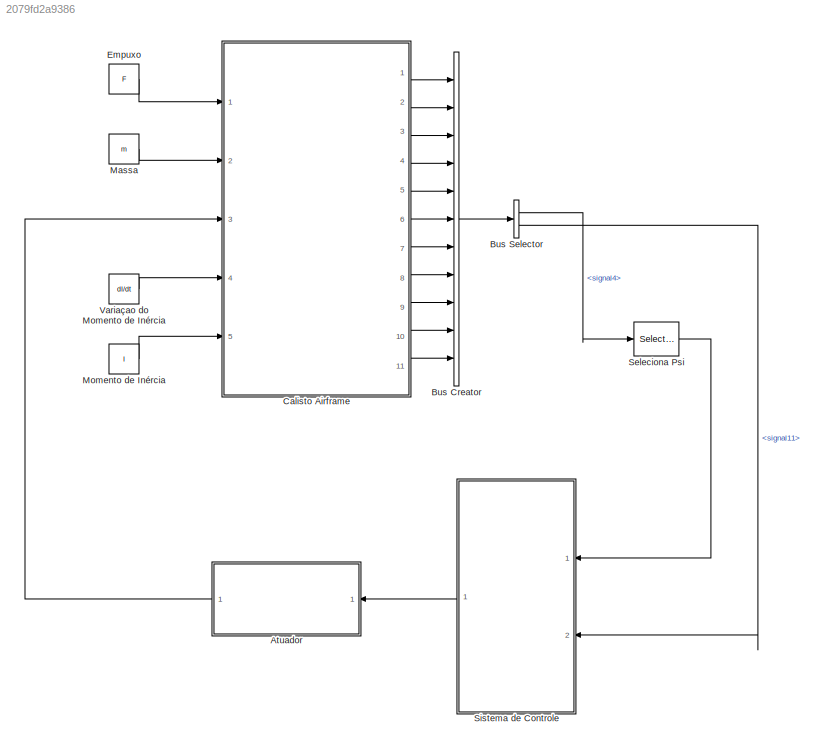
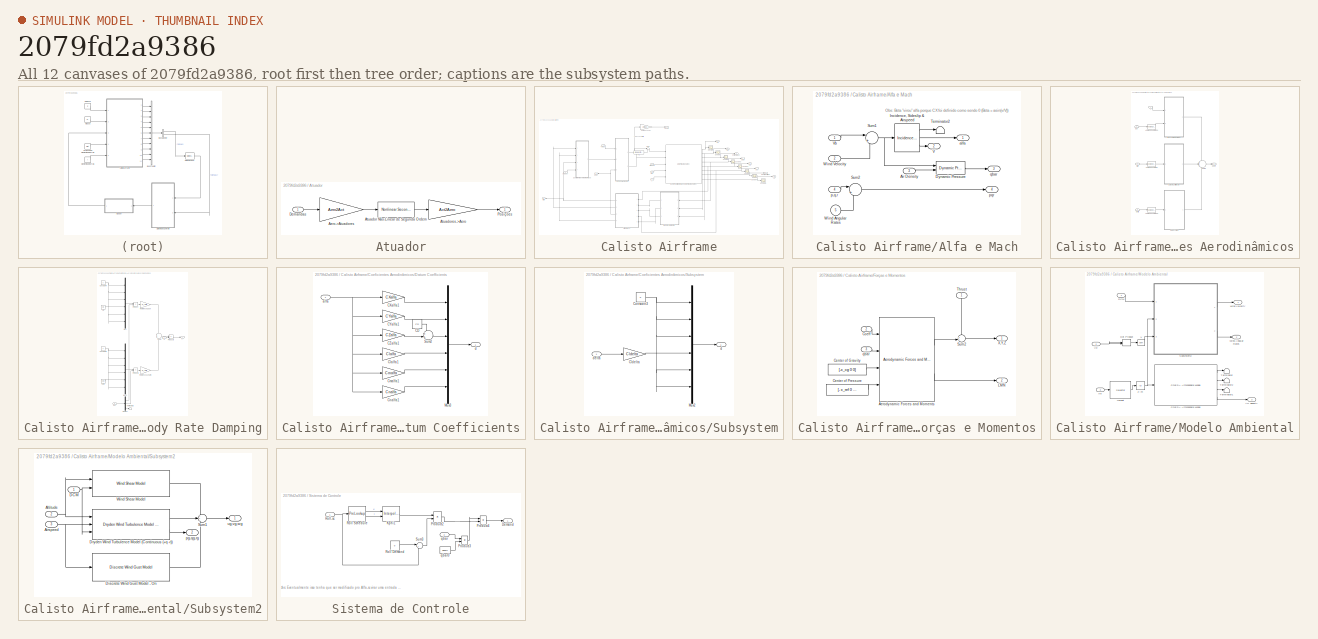
[diagram: thumbnail index - all 12 canvases of the model, root first then tree order]
MODEL slx_2079fd2a9386
KIND model
CONFIG AbsTol = auto
CONFIG FixedStep = auto
CONFIG MaxStep = auto
CONFIG MinStep = auto
CONFIG RelTol = 1e-3
CONFIG SampleTimeConstraint = Unconstrained
CONFIG Solver = ode45
CONFIG SolverMode = Auto
CONFIG SolverName = ode45
CONFIG StartTime = 0.0
CONFIG StopTime = 10.0
BLOCK [SubSystem] Atuador
  Ports = [1, 1]
  RequestExecContextInheritance = off
BLOCK [Gain] Atuador/Aero->Atuadores
  Gain = Aero2Act
  Multiplication = Matrix(K*u)
BLOCK [Reference] Atuador/Atuador Não-Linear de Segunda Ordem  REF=aerolibactuator/Nonlinear Second-Order Actuator
  Ports = [1, 1]
  SourceBlock = aerolibactuator/Nonlinear Second-Order Actuator
  SourceType = NonlinearSecondOrderActuator
  fin_act_0 = 0
  fin_act_vel = 0
  fin_max = max_lim
  fin_maxrate = inf
  fin_min = min_lim
  wn_fin = wn_act
  z_fin = z_act
BLOCK [Gain] Atuador/Atuadores->Aero
  Gain = Act2Aero
  Multiplication = Matrix(K*u)
BLOCK [Inport] Atuador/Demandas
  IconDisplay = Port number
BLOCK [Outport] Atuador/Posições
  IconDisplay = Port number
BLOCK [BusCreator] Bus Creator
  DisplayOption = bar
  Inputs = 11
  Ports = [11, 1]
BLOCK [BusSelector] Bus Selector
  OutputSignals = signal4,signal11
  Ports = [1, 2]
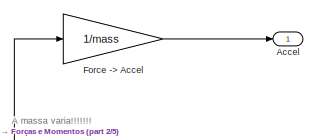
[diagram: Calisto Airframe - part 1/5, top center region]
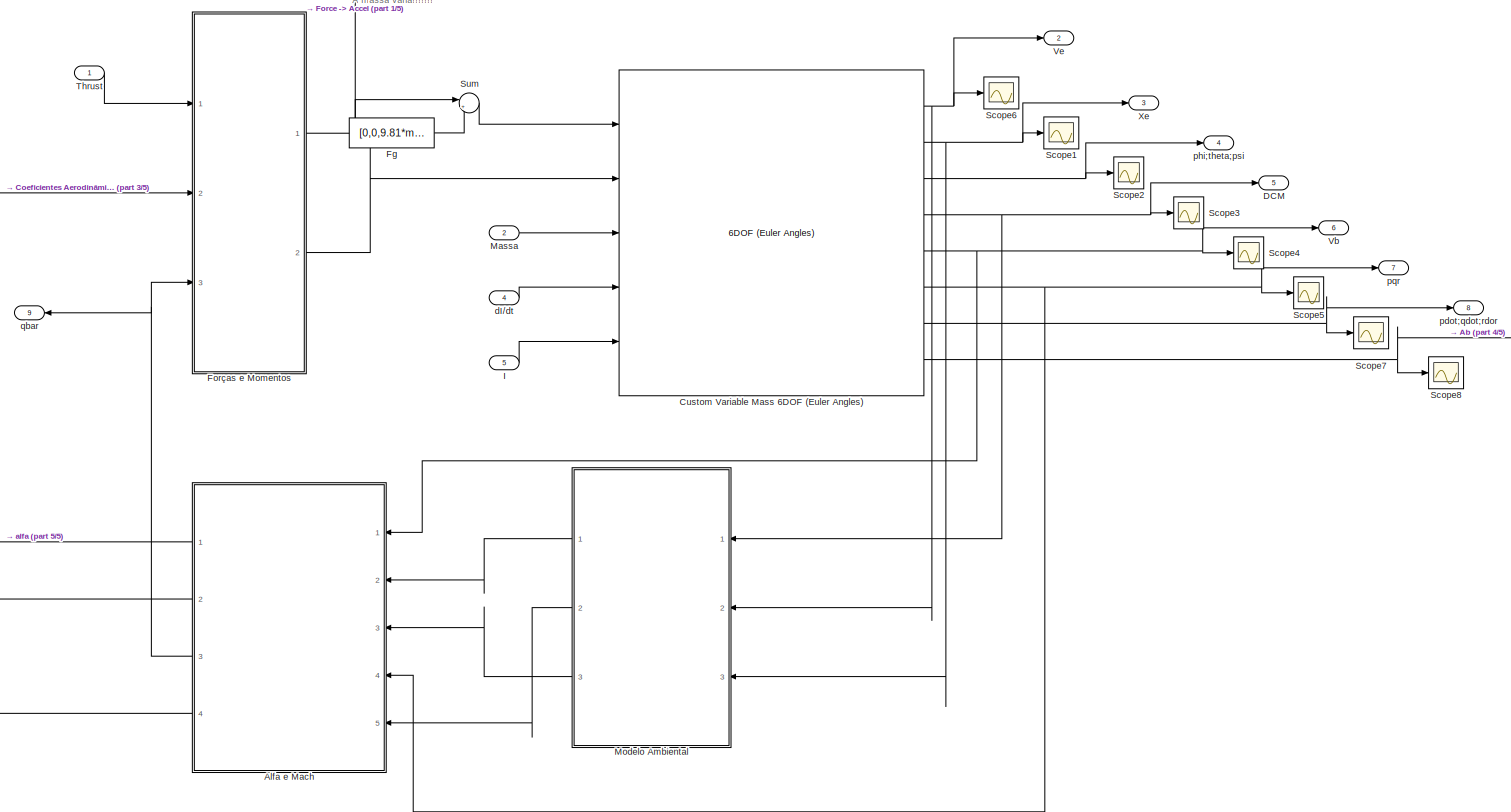
[diagram: Calisto Airframe - part 2/5, most of the canvas]
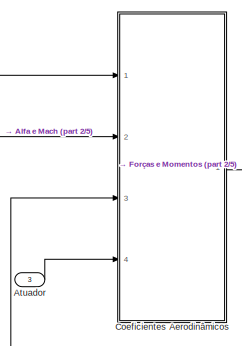
[diagram: Calisto Airframe - part 3/5, middle left region]
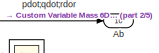
[diagram: Calisto Airframe - part 4/5, middle right region]
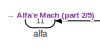
[diagram: Calisto Airframe - part 5/5, bottom left region]
BLOCK [SubSystem] Calisto Airframe
  Ports = [5, 11]
  RequestExecContextInheritance = off
BLOCK [Outport] Calisto Airframe/Ab
  IconDisplay = Port number
  Port = 10
BLOCK [Outport] Calisto Airframe/Accel
  IconDisplay = Port number
BLOCK [SubSystem] Calisto Airframe/Alfa e Mach
  Ports = [5, 4]
  RequestExecContextInheritance = off
BLOCK [Inport] Calisto Airframe/Alfa e Mach/Air Density
  IconDisplay = Port number
  Port = 3
BLOCK [Reference] Calisto Airframe/Alfa e Mach/Dynamic Pressure  REF=aerolibasang/Dynamic Pressure
  Ports = [2, 1]
  SourceBlock = aerolibasang/Dynamic Pressure
  SourceType = Dynamic Pressure
BLOCK [Reference] Calisto Airframe/Alfa e Mach/Incidence, Sideslip & Airspeed  REF=aerolibasang/Incidence, Sideslip,
& Airspeed
  Ports = [1, 3]
  SourceBlock = aerolibasang/Incidence, Sideslip,\n& Airspeed
  SourceType = Incidence,Sideslip,&Airspeed
BLOCK [Sum] Calisto Airframe/Alfa e Mach/Sum1
  IconShape = round
  Inputs = |+-
  Ports = [2, 1]
BLOCK [Sum] Calisto Airframe/Alfa e Mach/Sum2
  IconShape = round
  Inputs = |++
  Ports = [2, 1]
BLOCK [Terminator] Calisto Airframe/Alfa e Mach/Terminator2
BLOCK [Outport] Calisto Airframe/Alfa e Mach/V
  IconDisplay = Port number
  Port = 2
BLOCK [Inport] Calisto Airframe/Alfa e Mach/Vb
  IconDisplay = Port number
BLOCK [Inport] Calisto Airframe/Alfa e Mach/Wind Angular Rates
  IconDisplay = Port number
  Port = 5
BLOCK [Inport] Calisto Airframe/Alfa e Mach/Wind Velocity
  IconDisplay = Port number
  Port = 2
BLOCK [Outport] Calisto Airframe/Alfa e Mach/alfa
  IconDisplay = Port number
BLOCK [Inport] Calisto Airframe/Alfa e Mach/p,q,r
  IconDisplay = Port number
  Port = 4
BLOCK [Outport] Calisto Airframe/Alfa e Mach/pqr
  IconDisplay = Port number
  Port = 4
BLOCK [Outport] Calisto Airframe/Alfa e Mach/qbar
  IconDisplay = Port number
  Port = 3
BLOCK [Inport] Calisto Airframe/Atuador
  IconDisplay = Port number
  Port = 3
BLOCK [SubSystem] Calisto Airframe/Coeficientes Aerodinâmicos
  Ports = [4, 1]
  RequestExecContextInheritance = off
BLOCK [Reference] Calisto Airframe/Coeficientes Aerodinâmicos/Angle Conversion  REF=aerolibconvert2/Angle Conversion
  IU = rad
  OU = deg
  Ports = [1, 1]
  SourceBlock = aerolibconvert2/Angle Conversion
  SourceType = Angle Conversion
BLOCK [Reference] Calisto Airframe/Coeficientes Aerodinâmicos/Angle Conversion1  REF=aerolibconvert2/Angle Conversion
  IU = rad
  OU = deg
  Ports = [1, 1]
  SourceBlock = aerolibconvert2/Angle Conversion
  SourceType = Angle Conversion
BLOCK [Reference] Calisto Airframe/Coeficientes Aerodinâmicos/Angle Conversion2  REF=aerolibconvert2/Angle Conversion
  IU = rad
  OU = deg
  Ports = [1, 1]
  SourceBlock = aerolibconvert2/Angle Conversion
  SourceType = Angle Conversion
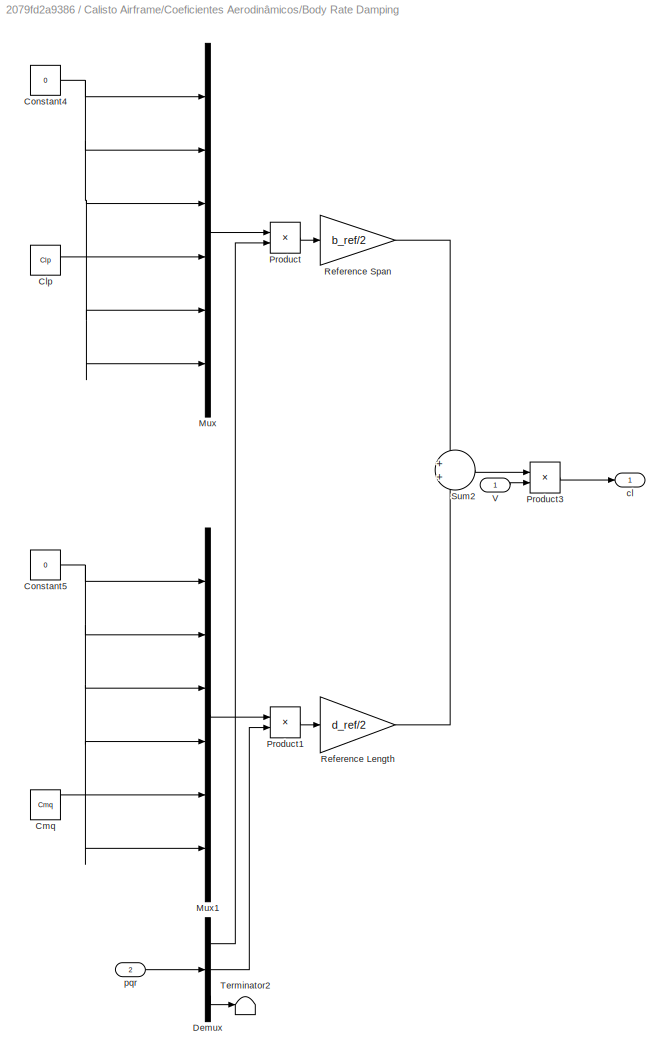
BLOCK [SubSystem] Calisto Airframe/Coeficientes Aerodinâmicos/Body Rate Damping
  Ports = [2, 1]
  RequestExecContextInheritance = off
BLOCK [Constant] Calisto Airframe/Coeficientes Aerodinâmicos/Body Rate Damping/Clp
  Value = Clp
BLOCK [Constant] Calisto Airframe/Coeficientes Aerodinâmicos/Body Rate Damping/Cmq
  Value = Cmq
BLOCK [Constant] Calisto Airframe/Coeficientes Aerodinâmicos/Body Rate Damping/Constant4
  Value = 0
BLOCK [Constant] Calisto Airframe/Coeficientes Aerodinâmicos/Body Rate Damping/Constant5
  Value = 0
BLOCK [Demux] Calisto Airframe/Coeficientes Aerodinâmicos/Body Rate Damping/Demux
  DisplayOption = bar
  Outputs = 3
  Ports = [1, 3]
BLOCK [Mux] Calisto Airframe/Coeficientes Aerodinâmicos/Body Rate Damping/Mux
  DisplayOption = bar
  Inputs = 6
  Ports = [6, 1]
BLOCK [Mux] Calisto Airframe/Coeficientes Aerodinâmicos/Body Rate Damping/Mux1
  DisplayOption = bar
  Inputs = 6
  Ports = [6, 1]
BLOCK [Product] Calisto Airframe/Coeficientes Aerodinâmicos/Body Rate Damping/Product
  Ports = [2, 1]
  RndMeth = Floor
BLOCK [Product] Calisto Airframe/Coeficientes Aerodinâmicos/Body Rate Damping/Product1
  Ports = [2, 1]
  RndMeth = Floor
BLOCK [Product] Calisto Airframe/Coeficientes Aerodinâmicos/Body Rate Damping/Product3
  Inputs = */
  Ports = [2, 1]
  RndMeth = Floor
BLOCK [Gain] Calisto Airframe/Coeficientes Aerodinâmicos/Body Rate Damping/Reference Length
  Gain = d_ref/2
BLOCK [Gain] Calisto Airframe/Coeficientes Aerodinâmicos/Body Rate Damping/Reference Span
  Gain = b_ref/2
BLOCK [Sum] Calisto Airframe/Coeficientes Aerodinâmicos/Body Rate Damping/Sum2
  IconShape = round
  Ports = [2, 1]
BLOCK [Terminator] Calisto Airframe/Coeficientes Aerodinâmicos/Body Rate Damping/Terminator2
BLOCK [Inport] Calisto Airframe/Coeficientes Aerodinâmicos/Body Rate Damping/V
  IconDisplay = Port number
BLOCK [Outport] Calisto Airframe/Coeficientes Aerodinâmicos/Body Rate Damping/cl
  IconDisplay = Port number
BLOCK [Inport] Calisto Airframe/Coeficientes Aerodinâmicos/Body Rate Damping/pqr
  IconDisplay = Port number
  Port = 2
BLOCK [Outport] Calisto Airframe/Coeficientes Aerodinâmicos/Coeff
  IconDisplay = Port number
BLOCK [SubSystem] Calisto Airframe/Coeficientes Aerodinâmicos/Datum Coefficients
  Ports = [1, 1]
  RequestExecContextInheritance = off
BLOCK [Constant] Calisto Airframe/Coeficientes Aerodinâmicos/Datum Coefficients/CD
  Value = CD
BLOCK [Gain] Calisto Airframe/Coeficientes Aerodinâmicos/Datum Coefficients/CXalfa1
  Gain = CXalfa
  OutDataTypeStr = Inherit: Inherit via internal rule
  ParamDataTypeStr = Inherit: Inherit via internal rule
  SaturateOnIntegerOverflow = off
BLOCK [Gain] Calisto Airframe/Coeficientes Aerodinâmicos/Datum Coefficients/CYalfa1
  Gain = CYalfa
  OutDataTypeStr = Inherit: Inherit via internal rule
  ParamDataTypeStr = Inherit: Inherit via internal rule
  SaturateOnIntegerOverflow = off
BLOCK [Gain] Calisto Airframe/Coeficientes Aerodinâmicos/Datum Coefficients/CZalfa1
  Gain = CZalfa
  OutDataTypeStr = Inherit: Inherit via internal rule
  ParamDataTypeStr = Inherit: Inherit via internal rule
  SaturateOnIntegerOverflow = off
BLOCK [Gain] Calisto Airframe/Coeficientes Aerodinâmicos/Datum Coefficients/Clalfa1
  Gain = Clalfa
  OutDataTypeStr = Inherit: Inherit via internal rule
  ParamDataTypeStr = Inherit: Inherit via internal rule
  SaturateOnIntegerOverflow = off
BLOCK [Gain] Calisto Airframe/Coeficientes Aerodinâmicos/Datum Coefficients/Cmalfa1
  Gain = Cmalfa
  OutDataTypeStr = Inherit: Inherit via internal rule
  ParamDataTypeStr = Inherit: Inherit via internal rule
  SaturateOnIntegerOverflow = off
BLOCK [Gain] Calisto Airframe/Coeficientes Aerodinâmicos/Datum Coefficients/Cnalfa1
  Gain = Cnalfa
  OutDataTypeStr = Inherit: Inherit via internal rule
  ParamDataTypeStr = Inherit: Inherit via internal rule
  SaturateOnIntegerOverflow = off
BLOCK [Mux] Calisto Airframe/Coeficientes Aerodinâmicos/Datum Coefficients/Mux3
  DisplayOption = bar
  Inputs = 6
  Ports = [6, 1]
BLOCK [Sum] Calisto Airframe/Coeficientes Aerodinâmicos/Datum Coefficients/Sum2
  IconShape = round
  Inputs = ++|
  Ports = [2, 1]
BLOCK [Inport] Calisto Airframe/Coeficientes Aerodinâmicos/Datum Coefficients/alfa
  IconDisplay = Port number
BLOCK [Outport] Calisto Airframe/Coeficientes Aerodinâmicos/Datum Coefficients/cl
  IconDisplay = Port number
BLOCK [SubSystem] Calisto Airframe/Coeficientes Aerodinâmicos/Subsystem
  Ports = [1, 1]
  RequestExecContextInheritance = off
BLOCK [Gain] Calisto Airframe/Coeficientes Aerodinâmicos/Subsystem/Cldelta
  Gain = Cldelta
  OutDataTypeStr = Inherit: Inherit via internal rule
  ParamDataTypeStr = Inherit: Inherit via internal rule
  SaturateOnIntegerOverflow = off
BLOCK [Constant] Calisto Airframe/Coeficientes Aerodinâmicos/Subsystem/Constant3
  Value = 0
BLOCK [Mux] Calisto Airframe/Coeficientes Aerodinâmicos/Subsystem/Mux2
  DisplayOption = bar
  Inputs = 6
  Ports = [6, 1]
BLOCK [Outport] Calisto Airframe/Coeficientes Aerodinâmicos/Subsystem/cl
  IconDisplay = Port number
BLOCK [Inport] Calisto Airframe/Coeficientes Aerodinâmicos/Subsystem/delta
  IconDisplay = Port number
BLOCK [Sum] Calisto Airframe/Coeficientes Aerodinâmicos/Sum1
  IconShape = round
  Inputs = +++
  Ports = [3, 1]
BLOCK [Inport] Calisto Airframe/Coeficientes Aerodinâmicos/V
  IconDisplay = Port number
BLOCK [Inport] Calisto Airframe/Coeficientes Aerodinâmicos/alfa
  IconDisplay = Port number
  Port = 3
BLOCK [Inport] Calisto Airframe/Coeficientes Aerodinâmicos/delta
  IconDisplay = Port number
  Port = 4
BLOCK [Inport] Calisto Airframe/Coeficientes Aerodinâmicos/pqr
  IconDisplay = Port number
  Port = 2
BLOCK [Reference] Calisto Airframe/Custom Variable Mass 6DOF (Euler Angles)  REF=aerolib6dof2/6DOF (Euler Angles)
  Ports = [5, 8]
  SourceBlock = aerolib6dof2/6DOF (Euler Angles)
  SourceType = 6DOF EoM (Body Axis)
  Vm_0 = [0 0 0]
  eul_0 = [0 0 0]
  inertia = eye(3)
  inertia_e = eye(3)
  inertia_f = 2*eye(3)
  k_quat = 1.0
  mass_0 = 1.0
  mass_e = 0.5
  mass_f = 2.0
  mtype = Custom Variable
  pm_0 = [0 0 0]
  rep = Euler Angles
  units = Metric (MKS)
  vre_flag = off
  xme_0 = [0 0 0]
BLOCK [Outport] Calisto Airframe/DCM
  IconDisplay = Port number
  Port = 5
BLOCK [Constant] Calisto Airframe/Fg
  Value = [0,0,9.81*mass]
BLOCK [Gain] Calisto Airframe/Force -> Accel
  Gain = 1/mass
  OutDataTypeStr = Inherit: Inherit via internal rule
  ParamDataTypeStr = Inherit: Inherit via internal rule
  SaturateOnIntegerOverflow = off
BLOCK [SubSystem] Calisto Airframe/Forças e Momentos
  Ports = [3, 2]
  RequestExecContextInheritance = off
BLOCK [Reference] Calisto Airframe/Forças e Momentos/Aerodynamic Forces and Moments  REF=aerolibadyn/Aerodynamic
Forces and Moments 
  Ports = [4, 2]
  S = 1
  SourceBlock = aerolibadyn/Aerodynamic\nForces and Moments
  SourceType = Aerodynamic Forces and Moments
  b = 1
  cbar = 1
  inputAxes = Body
  outputForceAxes = Body
  outputMomentAxes = Body
BLOCK [Constant] Calisto Airframe/Forças e Momentos/Center of Gravity
  Value = [-x_cg 0 0]
BLOCK [Constant] Calisto Airframe/Forças e Momentos/Center of Pressure
  Value = [- x_ref 0 0]
BLOCK [Inport] Calisto Airframe/Forças e Momentos/Coeff
  IconDisplay = Port number
  Port = 2
BLOCK [Outport] Calisto Airframe/Forças e Momentos/LMN
  IconDisplay = Port number
  Port = 2
BLOCK [Sum] Calisto Airframe/Forças e Momentos/Sum2
  IconShape = round
  Inputs = ++|
  Ports = [2, 1]
BLOCK [Inport] Calisto Airframe/Forças e Momentos/Thrust
  IconDisplay = Port number
BLOCK [Outport] Calisto Airframe/Forças e Momentos/X,Y,Z
  IconDisplay = Port number
BLOCK [Inport] Calisto Airframe/Forças e Momentos/qbar
  IconDisplay = Port number
  Port = 3
BLOCK [Inport] Calisto Airframe/I
  IconDisplay = Port number
  Port = 5
BLOCK [Inport] Calisto Airframe/Massa
  IconDisplay = Port number
  Port = 2
BLOCK [SubSystem] Calisto Airframe/Modelo Ambiental
  Ports = [3, 3]
  RequestExecContextInheritance = off
BLOCK [Outport] Calisto Airframe/Modelo Ambiental/Air density
  IconDisplay = Port number
  Port = 3
BLOCK [Reference] Calisto Airframe/Modelo Ambiental/COESA Atmosphere Model  REF=aerolibatmos2/COESA Atmosphere Model
  Ports = [1, 4]
  SourceBlock = aerolibatmos2/COESA Atmosphere Model
  SourceType = Atmosphere Model
  action = None
  envelope_percent = 1%
  envelope_var = High temperature
  model = Profile
  profile_alt = 5 km (16404 ft)
  profile_percent = 10%
  profile_var = High temperature
  spec = 1976 COESA-extended U.S. Standard Atmosphere
  units = Metric (MKS)
BLOCK [Inport] Calisto Airframe/Modelo Ambiental/DCM
  IconDisplay = Port number
BLOCK [DotProduct] Calisto Airframe/Modelo Ambiental/Dot Product
  InputSameDT = off
  OutDataTypeStr = Inherit: Inherit via internal rule
  SaturateOnIntegerOverflow = on
BLOCK [Selector] Calisto Airframe/Modelo Ambiental/Height
  Indices = [3]
  InputPortWidth = 3
  Ports = [1, 1]
BLOCK [SubSystem] Calisto Airframe/Modelo Ambiental/Subsystem2
  Ports = [3, 2]
  RequestExecContextInheritance = off
BLOCK [Inport] Calisto Airframe/Modelo Ambiental/Subsystem2/Airspeed
  IconDisplay = Port number
  Port = 3
BLOCK [Inport] Calisto Airframe/Modelo Ambiental/Subsystem2/Altitude
  IconDisplay = Port number
  Port = 2
BLOCK [Inport] Calisto Airframe/Modelo Ambiental/Subsystem2/DCM
  IconDisplay = Port number
BLOCK [Reference] Calisto Airframe/Modelo Ambiental/Subsystem2/Discrete Wind Gust Model - On  REF=aerolibwind2/Discrete Wind Gust Model
  Gx = on
  Gy = on
  Gz = on
  Ports = [1, 1]
  SourceBlock = aerolibwind2/Discrete Wind Gust Model
  SourceType = Discrete Wind Gust Model
  d_m = [120 120 80]
  t_0 = 20
  units = Metric (MKS)
  v_m = [3.5 3.0 3.0]
BLOCK [Reference] Calisto Airframe/Modelo Ambiental/Subsystem2/Dryden Wind Turbulence Model (Continuous (+q -r))  REF=aerolibwind2/Dryden Wind Turbulence Model 
(Continuous (+q -r))
  L_high = 533.4
  Ports = [3, 2]
  Seed = [23341 23342 23343 23344]
  SourceBlock = aerolibwind2/Dryden Wind Turbulence Model \n(Continuous (+q -r))
  SourceType = Wind Turbulence Model
  T_on = on
  TurbProb = 10^-2 - Light
  W20 = 5
  Wdeg = 0
  Wingspan = 4
  model = Continuous Dryden (+q -r)
  spec = MIL-F-8785C
  ts = 0.1
  units = Metric (MKS)
BLOCK [Sum] Calisto Airframe/Modelo Ambiental/Subsystem2/Sum1
  IconShape = round
  Inputs = +++
  Ports = [3, 1]
BLOCK [Reference] Calisto Airframe/Modelo Ambiental/Subsystem2/Wind Shear Model  REF=aerolibwind2/Wind Shear Model
  Ports = [2, 1]
  SourceBlock = aerolibwind2/Wind Shear Model
  SourceType = Wind Shear Model
  W_20 = 1
  Wdeg = 0
  phase = Category C - Terminal Flight Phase
  units = Metric (MKS)
BLOCK [Outport] Calisto Airframe/Modelo Ambiental/Subsystem2/pg,qg,rg
  IconDisplay = Port number
  Port = 2
BLOCK [Outport] Calisto Airframe/Modelo Ambiental/Subsystem2/ug,vg,wg
  IconDisplay = Port number
BLOCK [Terminator] Calisto Airframe/Modelo Ambiental/Terminator
BLOCK [Terminator] Calisto Airframe/Modelo Ambiental/Terminator1
BLOCK [Terminator] Calisto Airframe/Modelo Ambiental/Terminator2
BLOCK [Math] Calisto Airframe/Modelo Ambiental/V
  Operator = sqrt
  Ports = [1, 1]
BLOCK [Inport] Calisto Airframe/Modelo Ambiental/Ve
  IconDisplay = Port number
  Port = 2
BLOCK [Outport] Calisto Airframe/Modelo Ambiental/Wind Angular Rates
  IconDisplay = Port number
  Port = 2
BLOCK [Outport] Calisto Airframe/Modelo Ambiental/Wind Velocity
  IconDisplay = Port number
BLOCK [Inport] Calisto Airframe/Modelo Ambiental/Xe
  IconDisplay = Port number
  Port = 3
BLOCK [Abs] Calisto Airframe/Modelo Ambiental/z-->h
BLOCK [Scope] Calisto Airframe/Scope1
  Floating = off
  NumInputPorts = 1
  Ports = [1]
  SaveName = ScopeData1
BLOCK [Scope] Calisto Airframe/Scope2
  Floating = off
  NumInputPorts = 1
  Ports = [1]
  SaveName = ScopeData2
BLOCK [Scope] Calisto Airframe/Scope3
  Floating = off
  NumInputPorts = 1
  Ports = [1]
  SaveName = ScopeData3
BLOCK [Scope] Calisto Airframe/Scope4
  Floating = off
  NumInputPorts = 1
  Ports = [1]
  SaveName = ScopeData4
BLOCK [Scope] Calisto Airframe/Scope5
  Floating = off
  NumInputPorts = 1
  Ports = [1]
  SaveName = ScopeData5
BLOCK [Scope] Calisto Airframe/Scope6
  Floating = off
  NumInputPorts = 1
  Ports = [1]
BLOCK [Scope] Calisto Airframe/Scope7
  Floating = off
  NumInputPorts = 1
  Ports = [1]
  SaveName = ScopeData6
BLOCK [Scope] Calisto Airframe/Scope8
  Floating = off
  NumInputPorts = 1
  Ports = [1]
  SaveName = ScopeData7
BLOCK [Sum] Calisto Airframe/Sum
  IconShape = round
  Inputs = |++
  Ports = [2, 1]
BLOCK [Inport] Calisto Airframe/Thrust
  IconDisplay = Port number
BLOCK [Outport] Calisto Airframe/Vb
  IconDisplay = Port number
  Port = 6
BLOCK [Outport] Calisto Airframe/Ve
  IconDisplay = Port number
  Port = 2
BLOCK [Outport] Calisto Airframe/Xe
  IconDisplay = Port number
  Port = 3
BLOCK [Outport] Calisto Airframe/alfa
  IconDisplay = Port number
  Port = 11
BLOCK [Inport] Calisto Airframe/dI//dt
  IconDisplay = Port number
  Port = 4
BLOCK [Outport] Calisto Airframe/pdot;qdot;rdor
  IconDisplay = Port number
  Port = 8
BLOCK [Outport] Calisto Airframe/phi;theta;psi
  IconDisplay = Port number
  Port = 4
BLOCK [Outport] Calisto Airframe/pqr
  IconDisplay = Port number
  Port = 7
BLOCK [Outport] Calisto Airframe/qbar
  IconDisplay = Port number
  Port = 9
BLOCK [Constant] Empuxo
  Value = F
BLOCK [Constant] Massa
  Value = m
BLOCK [Constant] Momento de Inércia
  Value = I
BLOCK [Selector] Seleciona Psi
  IndexMode = Zero-based
  Indices = 2
  InputPortWidth = 3
  Ports = [1, 1]
BLOCK [SubSystem] Sistema de Controle
  Ports = [2, 1]
  RequestExecContextInheritance = off
BLOCK [Outport] Sistema de Controle/Demand
  IconDisplay = Port number
BLOCK [Interpolation_n-D] Sistema de Controle/Kphi1
  InputPortMap = u0,u1
  NumberOfTableDimensions = 1
  Ports = [2, 1]
  RemoveProtectionIndex = on
  Table = Kphi_1
BLOCK [Product] Sistema de Controle/Product2
  Ports = [2, 1]
  RndMeth = Floor
BLOCK [Product] Sistema de Controle/Product3
  Inputs = */
  Ports = [2, 1]
  RndMeth = Floor
BLOCK [Product] Sistema de Controle/Product4
  Inputs = /*
  Ports = [2, 1]
  RndMeth = Floor
BLOCK [Constant] Sistema de Controle/Roll Demand
  Value = 0
BLOCK [PreLookup] Sistema de Controle/Roll Schedule
  BeginIndexSearchUsingPreviousIndexResult = on
  BreakpointsData = a_vec
  ExtrapMethod = Linear
  InputPortMap = u0
  Ports = [1, 2]
BLOCK [Inport] Sistema de Controle/Roll-sc
  IconDisplay = Port number
BLOCK [Sum] Sistema de Controle/Sum3
  IconShape = round
  Inputs = |+-
  Ports = [2, 1]
BLOCK [Inport] Sistema de Controle/qbar
  IconDisplay = Port number
  Port = 2
BLOCK [Constant] Sistema de Controle/qbar0
  Value = qbar0
BLOCK [Constant] Variaçao do Momento de Inércia
  Value = dI/dt
ANNOTATION Calisto Airframe: A massa varia!!!!!!!
ANNOTATION Calisto Airframe/Alfa e Mach: Obs: Beta "virou" alfa porque CX foi definido como sendo 0 (Beta = asin(v/V))
ANNOTATION Sistema de Controle: Obs: Eventualmente isso tenha que ser modificado pro Alfa-sc virar uma entrada além do Roll-sc
LINE Atuador/Aero->Atuadores:1 -> Atuador/Atuador Não-Linear de Segunda Ordem:1
LINE Atuador/Atuador Não-Linear de Segunda Ordem:1 -> Atuador/Atuadores->Aero:1
LINE Atuador/Atuadores->Aero:1 -> Atuador/Posições:1
LINE Atuador/Demandas:1 -> Atuador/Aero->Atuadores:1
LINE Atuador:1 -> Calisto Airframe:3
LINE Bus Creator:1 -> Bus Selector:1
LINE Bus Selector:1 -> Seleciona Psi:1
LINE Bus Selector:2 -> Sistema de Controle:2
LINE Calisto Airframe/Alfa e Mach/Air Density:1 -> Calisto Airframe/Alfa e Mach/Dynamic Pressure:2
LINE Calisto Airframe/Alfa e Mach/Dynamic Pressure:1 -> Calisto Airframe/Alfa e Mach/qbar:1
LINE Calisto Airframe/Alfa e Mach/Incidence, Sideslip & Airspeed:1 -> Calisto Airframe/Alfa e Mach/Terminator2:1
LINE Calisto Airframe/Alfa e Mach/Incidence, Sideslip & Airspeed:2 -> Calisto Airframe/Alfa e Mach/alfa:1
LINE Calisto Airframe/Alfa e Mach/Incidence, Sideslip & Airspeed:3 -> Calisto Airframe/Alfa e Mach/V:1
NET Calisto Airframe/Alfa e Mach/Sum1:1 -> Calisto Airframe/Alfa e Mach/Dynamic Pressure:1, Calisto Airframe/Alfa e Mach/Incidence, Sideslip & Airspeed:1
LINE Calisto Airframe/Alfa e Mach/Sum2:1 -> Calisto Airframe/Alfa e Mach/pqr:1
LINE Calisto Airframe/Alfa e Mach/Vb:1 -> Calisto Airframe/Alfa e Mach/Sum1:1
LINE Calisto Airframe/Alfa e Mach/Wind Angular Rates:1 -> Calisto Airframe/Alfa e Mach/Sum2:2
LINE Calisto Airframe/Alfa e Mach/Wind Velocity:1 -> Calisto Airframe/Alfa e Mach/Sum1:2
LINE Calisto Airframe/Alfa e Mach/p,q,r:1 -> Calisto Airframe/Alfa e Mach/Sum2:1
NET Calisto Airframe/Alfa e Mach:1 -> Calisto Airframe/Coeficientes Aerodinâmicos:3, Calisto Airframe/alfa:1
LINE Calisto Airframe/Alfa e Mach:2 -> Calisto Airframe/Coeficientes Aerodinâmicos:1
NET Calisto Airframe/Alfa e Mach:3 -> Calisto Airframe/Forças e Momentos:3, Calisto Airframe/qbar:1
LINE Calisto Airframe/Alfa e Mach:4 -> Calisto Airframe/Coeficientes Aerodinâmicos:2
LINE Calisto Airframe/Atuador:1 -> Calisto Airframe/Coeficientes Aerodinâmicos:4
LINE Calisto Airframe/Coeficientes Aerodinâmicos/Angle Conversion1:1 -> Calisto Airframe/Coeficientes Aerodinâmicos/Body Rate Damping:2
LINE Calisto Airframe/Coeficientes Aerodinâmicos/Angle Conversion2:1 -> Calisto Airframe/Coeficientes Aerodinâmicos/Subsystem:1
LINE Calisto Airframe/Coeficientes Aerodinâmicos/Angle Conversion:1 -> Calisto Airframe/Coeficientes Aerodinâmicos/Datum Coefficients:1
LINE Calisto Airframe/Coeficientes Aerodinâmicos/Body Rate Damping/Clp:1 -> Calisto Airframe/Coeficientes Aerodinâmicos/Body Rate Damping/Mux:4
LINE Calisto Airframe/Coeficientes Aerodinâmicos/Body Rate Damping/Cmq:1 -> Calisto Airframe/Coeficientes Aerodinâmicos/Body Rate Damping/Mux1:5
NET Calisto Airframe/Coeficientes Aerodinâmicos/Body Rate Damping/Constant4:1 -> Calisto Airframe/Coeficientes Aerodinâmicos/Body Rate Damping/Mux:1, Calisto Airframe/Coeficientes Aerodinâmicos/Body Rate Damping/Mux:2, Calisto Airframe/Coeficientes Aerodinâmicos/Body Rate Damping/Mux:3, Calisto Airframe/Coeficientes Aerodinâmicos/Body Rate Damping/Mux:5, Calisto Airframe/Coeficientes Aerodinâmicos/Body Rate Damping/Mux:6
NET Calisto Airframe/Coeficientes Aerodinâmicos/Body Rate Damping/Constant5:1 -> Calisto Airframe/Coeficientes Aerodinâmicos/Body Rate Damping/Mux1:1, Calisto Airframe/Coeficientes Aerodinâmicos/Body Rate Damping/Mux1:2, Calisto Airframe/Coeficientes Aerodinâmicos/Body Rate Damping/Mux1:3, Calisto Airframe/Coeficientes Aerodinâmicos/Body Rate Damping/Mux1:4, Calisto Airframe/Coeficientes Aerodinâmicos/Body Rate Damping/Mux1:6
LINE Calisto Airframe/Coeficientes Aerodinâmicos/Body Rate Damping/Demux:1 -> Calisto Airframe/Coeficientes Aerodinâmicos/Body Rate Damping/Product:2
LINE Calisto Airframe/Coeficientes Aerodinâmicos/Body Rate Damping/Demux:2 -> Calisto Airframe/Coeficientes Aerodinâmicos/Body Rate Damping/Product1:2
LINE Calisto Airframe/Coeficientes Aerodinâmicos/Body Rate Damping/Demux:3 -> Calisto Airframe/Coeficientes Aerodinâmicos/Body Rate Damping/Terminator2:1
LINE Calisto Airframe/Coeficientes Aerodinâmicos/Body Rate Damping/Mux1:1 -> Calisto Airframe/Coeficientes Aerodinâmicos/Body Rate Damping/Product1:1
LINE Calisto Airframe/Coeficientes Aerodinâmicos/Body Rate Damping/Mux:1 -> Calisto Airframe/Coeficientes Aerodinâmicos/Body Rate Damping/Product:1
LINE Calisto Airframe/Coeficientes Aerodinâmicos/Body Rate Damping/Product1:1 -> Calisto Airframe/Coeficientes Aerodinâmicos/Body Rate Damping/Reference Length:1
LINE Calisto Airframe/Coeficientes Aerodinâmicos/Body Rate Damping/Product3:1 -> Calisto Airframe/Coeficientes Aerodinâmicos/Body Rate Damping/cl:1
LINE Calisto Airframe/Coeficientes Aerodinâmicos/Body Rate Damping/Product:1 -> Calisto Airframe/Coeficientes Aerodinâmicos/Body Rate Damping/Reference Span:1
LINE Calisto Airframe/Coeficientes Aerodinâmicos/Body Rate Damping/Reference Length:1 -> Calisto Airframe/Coeficientes Aerodinâmicos/Body Rate Damping/Sum2:2
LINE Calisto Airframe/Coeficientes Aerodinâmicos/Body Rate Damping/Reference Span:1 -> Calisto Airframe/Coeficientes Aerodinâmicos/Body Rate Damping/Sum2:1
LINE Calisto Airframe/Coeficientes Aerodinâmicos/Body Rate Damping/Sum2:1 -> Calisto Airframe/Coeficientes Aerodinâmicos/Body Rate Damping/Product3:1
LINE Calisto Airframe/Coeficientes Aerodinâmicos/Body Rate Damping/V:1 -> Calisto Airframe/Coeficientes Aerodinâmicos/Body Rate Damping/Product3:2
LINE Calisto Airframe/Coeficientes Aerodinâmicos/Body Rate Damping/pqr:1 -> Calisto Airframe/Coeficientes Aerodinâmicos/Body Rate Damping/Demux:1
LINE Calisto Airframe/Coeficientes Aerodinâmicos/Body Rate Damping:1 -> Calisto Airframe/Coeficientes Aerodinâmicos/Sum1:1
LINE Calisto Airframe/Coeficientes Aerodinâmicos/Datum Coefficients/CD:1 -> Calisto Airframe/Coeficientes Aerodinâmicos/Datum Coefficients/Sum2:1
LINE Calisto Airframe/Coeficientes Aerodinâmicos/Datum Coefficients/CXalfa1:1 -> Calisto Airframe/Coeficientes Aerodinâmicos/Datum Coefficients/Mux3:1
LINE Calisto Airframe/Coeficientes Aerodinâmicos/Datum Coefficients/CYalfa1:1 -> Calisto Airframe/Coeficientes Aerodinâmicos/Datum Coefficients/Mux3:2
LINE Calisto Airframe/Coeficientes Aerodinâmicos/Datum Coefficients/CZalfa1:1 -> Calisto Airframe/Coeficientes Aerodinâmicos/Datum Coefficients/Sum2:2
LINE Calisto Airframe/Coeficientes Aerodinâmicos/Datum Coefficients/Clalfa1:1 -> Calisto Airframe/Coeficientes Aerodinâmicos/Datum Coefficients/Mux3:4
LINE Calisto Airframe/Coeficientes Aerodinâmicos/Datum Coefficients/Cmalfa1:1 -> Calisto Airframe/Coeficientes Aerodinâmicos/Datum Coefficients/Mux3:5
LINE Calisto Airframe/Coeficientes Aerodinâmicos/Datum Coefficients/Cnalfa1:1 -> Calisto Airframe/Coeficientes Aerodinâmicos/Datum Coefficients/Mux3:6
LINE Calisto Airframe/Coeficientes Aerodinâmicos/Datum Coefficients/Mux3:1 -> Calisto Airframe/Coeficientes Aerodinâmicos/Datum Coefficients/cl:1
LINE Calisto Airframe/Coeficientes Aerodinâmicos/Datum Coefficients/Sum2:1 -> Calisto Airframe/Coeficientes Aerodinâmicos/Datum Coefficients/Mux3:3
NET Calisto Airframe/Coeficientes Aerodinâmicos/Datum Coefficients/alfa:1 -> Calisto Airframe/Coeficientes Aerodinâmicos/Datum Coefficients/CXalfa1:1, Calisto Airframe/Coeficientes Aerodinâmicos/Datum Coefficients/CYalfa1:1, Calisto Airframe/Coeficientes Aerodinâmicos/Datum Coefficients/CZalfa1:1, Calisto Airframe/Coeficientes Aerodinâmicos/Datum Coefficients/Clalfa1:1, Calisto Airframe/Coeficientes Aerodinâmicos/Datum Coefficients/Cmalfa1:1, Calisto Airframe/Coeficientes Aerodinâmicos/Datum Coefficients/Cnalfa1:1
LINE Calisto Airframe/Coeficientes Aerodinâmicos/Datum Coefficients:1 -> Calisto Airframe/Coeficientes Aerodinâmicos/Sum1:2
LINE Calisto Airframe/Coeficientes Aerodinâmicos/Subsystem/Cldelta:1 -> Calisto Airframe/Coeficientes Aerodinâmicos/Subsystem/Mux2:4
NET Calisto Airframe/Coeficientes Aerodinâmicos/Subsystem/Constant3:1 -> Calisto Airframe/Coeficientes Aerodinâmicos/Subsystem/Mux2:1, Calisto Airframe/Coeficientes Aerodinâmicos/Subsystem/Mux2:2, Calisto Airframe/Coeficientes Aerodinâmicos/Subsystem/Mux2:3, Calisto Airframe/Coeficientes Aerodinâmicos/Subsystem/Mux2:5, Calisto Airframe/Coeficientes Aerodinâmicos/Subsystem/Mux2:6
LINE Calisto Airframe/Coeficientes Aerodinâmicos/Subsystem/Mux2:1 -> Calisto Airframe/Coeficientes Aerodinâmicos/Subsystem/cl:1
LINE Calisto Airframe/Coeficientes Aerodinâmicos/Subsystem/delta:1 -> Calisto Airframe/Coeficientes Aerodinâmicos/Subsystem/Cldelta:1
LINE Calisto Airframe/Coeficientes Aerodinâmicos/Subsystem:1 -> Calisto Airframe/Coeficientes Aerodinâmicos/Sum1:3
LINE Calisto Airframe/Coeficientes Aerodinâmicos/Sum1:1 -> Calisto Airframe/Coeficientes Aerodinâmicos/Coeff:1
LINE Calisto Airframe/Coeficientes Aerodinâmicos/V:1 -> Calisto Airframe/Coeficientes Aerodinâmicos/Body Rate Damping:1
LINE Calisto Airframe/Coeficientes Aerodinâmicos/alfa:1 -> Calisto Airframe/Coeficientes Aerodinâmicos/Angle Conversion:1
LINE Calisto Airframe/Coeficientes Aerodinâmicos/delta:1 -> Calisto Airframe/Coeficientes Aerodinâmicos/Angle Conversion2:1
LINE Calisto Airframe/Coeficientes Aerodinâmicos/pqr:1 -> Calisto Airframe/Coeficientes Aerodinâmicos/Angle Conversion1:1
LINE Calisto Airframe/Coeficientes Aerodinâmicos:1 -> Calisto Airframe/Forças e Momentos:2
NET Calisto Airframe/Custom Variable Mass 6DOF (Euler Angles):1 -> Calisto Airframe/Modelo Ambiental:2, Calisto Airframe/Scope6:1, Calisto Airframe/Ve:1
NET Calisto Airframe/Custom Variable Mass 6DOF (Euler Angles):2 -> Calisto Airframe/Modelo Ambiental:3, Calisto Airframe/Scope1:1, Calisto Airframe/Xe:1
NET Calisto Airframe/Custom Variable Mass 6DOF (Euler Angles):3 -> Calisto Airframe/Scope2:1, Calisto Airframe/phi;theta;psi:1
NET Calisto Airframe/Custom Variable Mass 6DOF (Euler Angles):4 -> Calisto Airframe/DCM:1, Calisto Airframe/Modelo Ambiental:1, Calisto Airframe/Scope3:1
NET Calisto Airframe/Custom Variable Mass 6DOF (Euler Angles):5 -> Calisto Airframe/Alfa e Mach:1, Calisto Airframe/Scope4:1, Calisto Airframe/Vb:1
NET Calisto Airframe/Custom Variable Mass 6DOF (Euler Angles):6 -> Calisto Airframe/Alfa e Mach:4, Calisto Airframe/Scope5:1, Calisto Airframe/pqr:1
NET Calisto Airframe/Custom Variable Mass 6DOF (Euler Angles):7 -> Calisto Airframe/Scope7:1, Calisto Airframe/pdot;qdot;rdor:1
NET Calisto Airframe/Custom Variable Mass 6DOF (Euler Angles):8 -> Calisto Airframe/Ab:1, Calisto Airframe/Scope8:1
LINE Calisto Airframe/Fg:1 -> Calisto Airframe/Sum:2
LINE Calisto Airframe/Force -> Accel:1 -> Calisto Airframe/Accel:1
LINE Calisto Airframe/Forças e Momentos/Aerodynamic Forces and Moments:1 -> Calisto Airframe/Forças e Momentos/Sum2:2
LINE Calisto Airframe/Forças e Momentos/Aerodynamic Forces and Moments:2 -> Calisto Airframe/Forças e Momentos/LMN:1
LINE Calisto Airframe/Forças e Momentos/Center of Gravity:1 -> Calisto Airframe/Forças e Momentos/Aerodynamic Forces and Moments:3
LINE Calisto Airframe/Forças e Momentos/Center of Pressure:1 -> Calisto Airframe/Forças e Momentos/Aerodynamic Forces and Moments:4
LINE Calisto Airframe/Forças e Momentos/Coeff:1 -> Calisto Airframe/Forças e Momentos/Aerodynamic Forces and Moments:1
LINE Calisto Airframe/Forças e Momentos/Sum2:1 -> Calisto Airframe/Forças e Momentos/X,Y,Z:1
LINE Calisto Airframe/Forças e Momentos/Thrust:1 -> Calisto Airframe/Forças e Momentos/Sum2:1
LINE Calisto Airframe/Forças e Momentos/qbar:1 -> Calisto Airframe/Forças e Momentos/Aerodynamic Forces and Moments:2
NET Calisto Airframe/Forças e Momentos:1 -> Calisto Airframe/Force -> Accel:1, Calisto Airframe/Sum:1
LINE Calisto Airframe/Forças e Momentos:2 -> Calisto Airframe/Custom Variable Mass 6DOF (Euler Angles):2
LINE Calisto Airframe/I:1 -> Calisto Airframe/Custom Variable Mass 6DOF (Euler Angles):5
LINE Calisto Airframe/Massa:1 -> Calisto Airframe/Custom Variable Mass 6DOF (Euler Angles):3
LINE Calisto Airframe/Modelo Ambiental/COESA Atmosphere Model:1 -> Calisto Airframe/Modelo Ambiental/Terminator:1
LINE Calisto Airframe/Modelo Ambiental/COESA Atmosphere Model:2 -> Calisto Airframe/Modelo Ambiental/Terminator2:1
LINE Calisto Airframe/Modelo Ambiental/COESA Atmosphere Model:3 -> Calisto Airframe/Modelo Ambiental/Terminator1:1
LINE Calisto Airframe/Modelo Ambiental/COESA Atmosphere Model:4 -> Calisto Airframe/Modelo Ambiental/Air density:1
LINE Calisto Airframe/Modelo Ambiental/DCM:1 -> Calisto Airframe/Modelo Ambiental/Subsystem2:1
LINE Calisto Airframe/Modelo Ambiental/Dot Product:1 -> Calisto Airframe/Modelo Ambiental/V:1
LINE Calisto Airframe/Modelo Ambiental/Height:1 -> Calisto Airframe/Modelo Ambiental/z-->h:1
NET Calisto Airframe/Modelo Ambiental/Subsystem2/Airspeed:1 -> Calisto Airframe/Modelo Ambiental/Subsystem2/Discrete Wind Gust Model - On:1, Calisto Airframe/Modelo Ambiental/Subsystem2/Dryden Wind Turbulence Model (Continuous (+q -r)):2
NET Calisto Airframe/Modelo Ambiental/Subsystem2/Altitude:1 -> Calisto Airframe/Modelo Ambiental/Subsystem2/Dryden Wind Turbulence Model (Continuous (+q -r)):1, Calisto Airframe/Modelo Ambiental/Subsystem2/Wind Shear Model:1
NET Calisto Airframe/Modelo Ambiental/Subsystem2/DCM:1 -> Calisto Airframe/Modelo Ambiental/Subsystem2/Dryden Wind Turbulence Model (Continuous (+q -r)):3, Calisto Airframe/Modelo Ambiental/Subsystem2/Wind Shear Model:2
LINE Calisto Airframe/Modelo Ambiental/Subsystem2/Discrete Wind Gust Model - On:1 -> Calisto Airframe/Modelo Ambiental/Subsystem2/Sum1:3
LINE Calisto Airframe/Modelo Ambiental/Subsystem2/Dryden Wind Turbulence Model (Continuous (+q -r)):1 -> Calisto Airframe/Modelo Ambiental/Subsystem2/Sum1:2
LINE Calisto Airframe/Modelo Ambiental/Subsystem2/Dryden Wind Turbulence Model (Continuous (+q -r)):2 -> Calisto Airframe/Modelo Ambiental/Subsystem2/pg,qg,rg:1
LINE Calisto Airframe/Modelo Ambiental/Subsystem2/Sum1:1 -> Calisto Airframe/Modelo Ambiental/Subsystem2/ug,vg,wg:1
LINE Calisto Airframe/Modelo Ambiental/Subsystem2/Wind Shear Model:1 -> Calisto Airframe/Modelo Ambiental/Subsystem2/Sum1:1
LINE Calisto Airframe/Modelo Ambiental/Subsystem2:1 -> Calisto Airframe/Modelo Ambiental/Wind Velocity:1
LINE Calisto Airframe/Modelo Ambiental/Subsystem2:2 -> Calisto Airframe/Modelo Ambiental/Wind Angular Rates:1
LINE Calisto Airframe/Modelo Ambiental/V:1 -> Calisto Airframe/Modelo Ambiental/Subsystem2:3
NET Calisto Airframe/Modelo Ambiental/Ve:1 -> Calisto Airframe/Modelo Ambiental/Dot Product:1, Calisto Airframe/Modelo Ambiental/Dot Product:2
LINE Calisto Airframe/Modelo Ambiental/Xe:1 -> Calisto Airframe/Modelo Ambiental/Height:1
NET Calisto Airframe/Modelo Ambiental/z-->h:1 -> Calisto Airframe/Modelo Ambiental/COESA Atmosphere Model:1, Calisto Airframe/Modelo Ambiental/Subsystem2:2
LINE Calisto Airframe/Modelo Ambiental:1 -> Calisto Airframe/Alfa e Mach:2
LINE Calisto Airframe/Modelo Ambiental:2 -> Calisto Airframe/Alfa e Mach:5
LINE Calisto Airframe/Modelo Ambiental:3 -> Calisto Airframe/Alfa e Mach:3
LINE Calisto Airframe/Sum:1 -> Calisto Airframe/Custom Variable Mass 6DOF (Euler Angles):1
LINE Calisto Airframe/Thrust:1 -> Calisto Airframe/Forças e Momentos:1
LINE Calisto Airframe/dI//dt:1 -> Calisto Airframe/Custom Variable Mass 6DOF (Euler Angles):4
LINE Calisto Airframe:1 -> Bus Creator:1
LINE Calisto Airframe:10 -> Bus Creator:10
LINE Calisto Airframe:11 -> Bus Creator:11
LINE Calisto Airframe:2 -> Bus Creator:2
LINE Calisto Airframe:3 -> Bus Creator:3
LINE Calisto Airframe:4 -> Bus Creator:4
LINE Calisto Airframe:5 -> Bus Creator:5
LINE Calisto Airframe:6 -> Bus Creator:6
LINE Calisto Airframe:7 -> Bus Creator:7
LINE Calisto Airframe:8 -> Bus Creator:8
LINE Calisto Airframe:9 -> Bus Creator:9
LINE Empuxo:1 -> Calisto Airframe:1
LINE Massa:1 -> Calisto Airframe:2
LINE Momento de Inércia:1 -> Calisto Airframe:5
LINE Seleciona Psi:1 -> Sistema de Controle:1
LINE Sistema de Controle/Kphi1:1 -> Sistema de Controle/Product2:1
LINE Sistema de Controle/Product2:1 -> Sistema de Controle/Product4:2
LINE Sistema de Controle/Product3:1 -> Sistema de Controle/Product4:1
LINE Sistema de Controle/Product4:1 -> Sistema de Controle/Demand:1
LINE Sistema de Controle/Roll Demand:1 -> Sistema de Controle/Sum3:1
LINE Sistema de Controle/Roll Schedule:1 -> Sistema de Controle/Kphi1:1
LINE Sistema de Controle/Roll Schedule:2 -> Sistema de Controle/Kphi1:2
NET Sistema de Controle/Roll-sc:1 -> Sistema de Controle/Roll Schedule:1, Sistema de Controle/Sum3:2
LINE Sistema de Controle/Sum3:1 -> Sistema de Controle/Product2:2
LINE Sistema de Controle/qbar0:1 -> Sistema de Controle/Product3:2
LINE Sistema de Controle/qbar:1 -> Sistema de Controle/Product3:1
LINE Sistema de Controle:1 -> Atuador:1
LINE Variaçao do Momento de Inércia:1 -> Calisto Airframe:4
note: NET lines group one-source signal fan-out (src -> all destinations, sorted); 1:1 wires keep LINE
